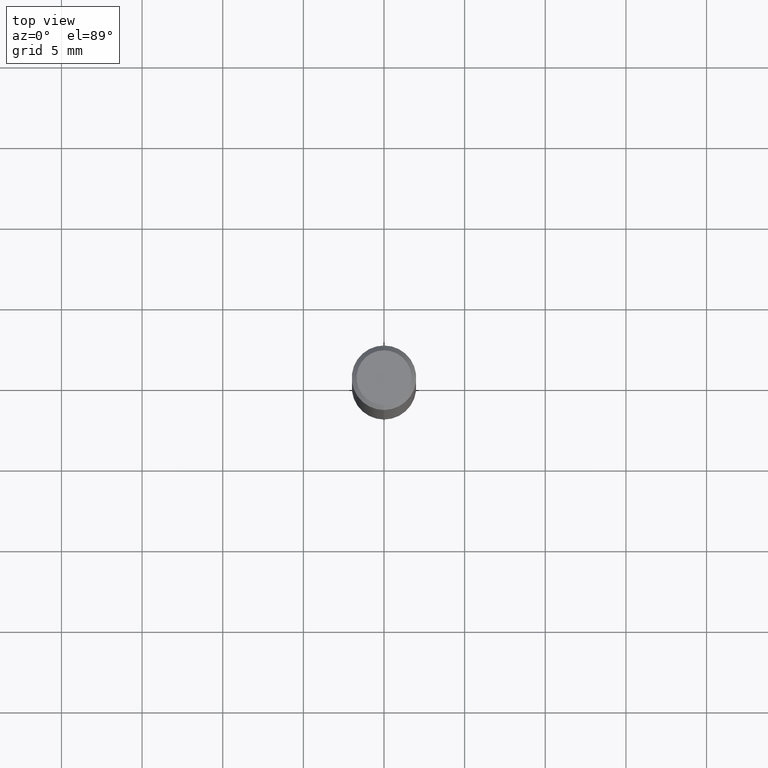
[diagram: clean part render]
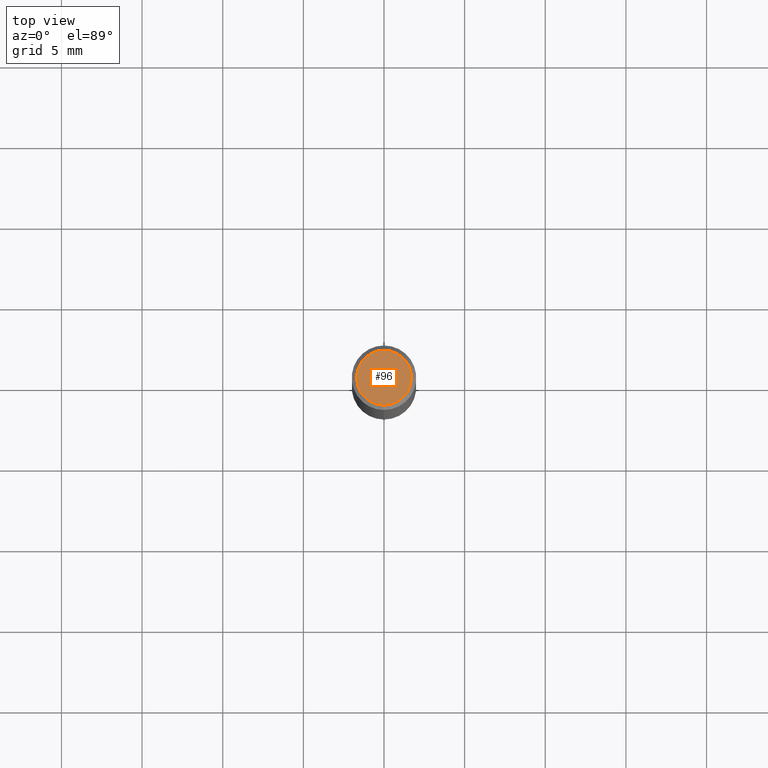
[diagram: same view with one face highlighted and labeled with its STEP entity id]
A machine part, top view. The second image highlights one B-rep face of the part: STEP entity #96.
In plain terms, the highlighted planar face has unit normal (-0, 0, 1).
Its self-contained STEP definition (entity closure, byte-faithful):
#96=ADVANCED_FACE('',(#237),#238,.T.);
#104=EDGE_CURVE('',#200,#132,#246,.T.);
#132=VERTEX_POINT('',#279);
#190=EDGE_CURVE('',#132,#200,#343,.T.);
#200=VERTEX_POINT('',#356);
#237=FACE_OUTER_BOUND('',#388,.T.);
#238=PLANE('',#389);
#246=CIRCLE('',#401,1.7);
#279=CARTESIAN_POINT('',(0.0,1.7,0.0));
#343=CIRCLE('',#520,1.7);
#356=CARTESIAN_POINT('',(2.08183080149804E-016,-1.7,0.0));
#388=EDGE_LOOP('',(#563,#564));
#389=AXIS2_PLACEMENT_3D('',#565,#566,#567);
#401=AXIS2_PLACEMENT_3D('',#571,#572,#573);
#520=AXIS2_PLACEMENT_3D('',#692,#693,#694);
#563=ORIENTED_EDGE('',*,*,#190,.F.);
#564=ORIENTED_EDGE('',*,*,#104,.F.);
#565=CARTESIAN_POINT('',(0.0,0.85,0.0));
#566=DIRECTION('',(-0.0,0.0,1.0));
#567=DIRECTION('',(0.0,-1.0,0.0));
#571=CARTESIAN_POINT('',(0.0,0.0,0.0));
#572=DIRECTION('',(0.0,0.0,-1.0));
#573=DIRECTION('',(0.0,1.0,0.0));
#692=CARTESIAN_POINT('',(0.0,0.0,0.0));
#693=DIRECTION('',(0.0,0.0,-1.0));
#694=DIRECTION('',(0.0,1.0,0.0));